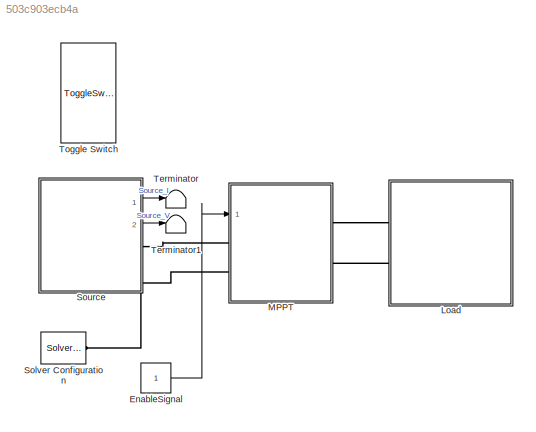
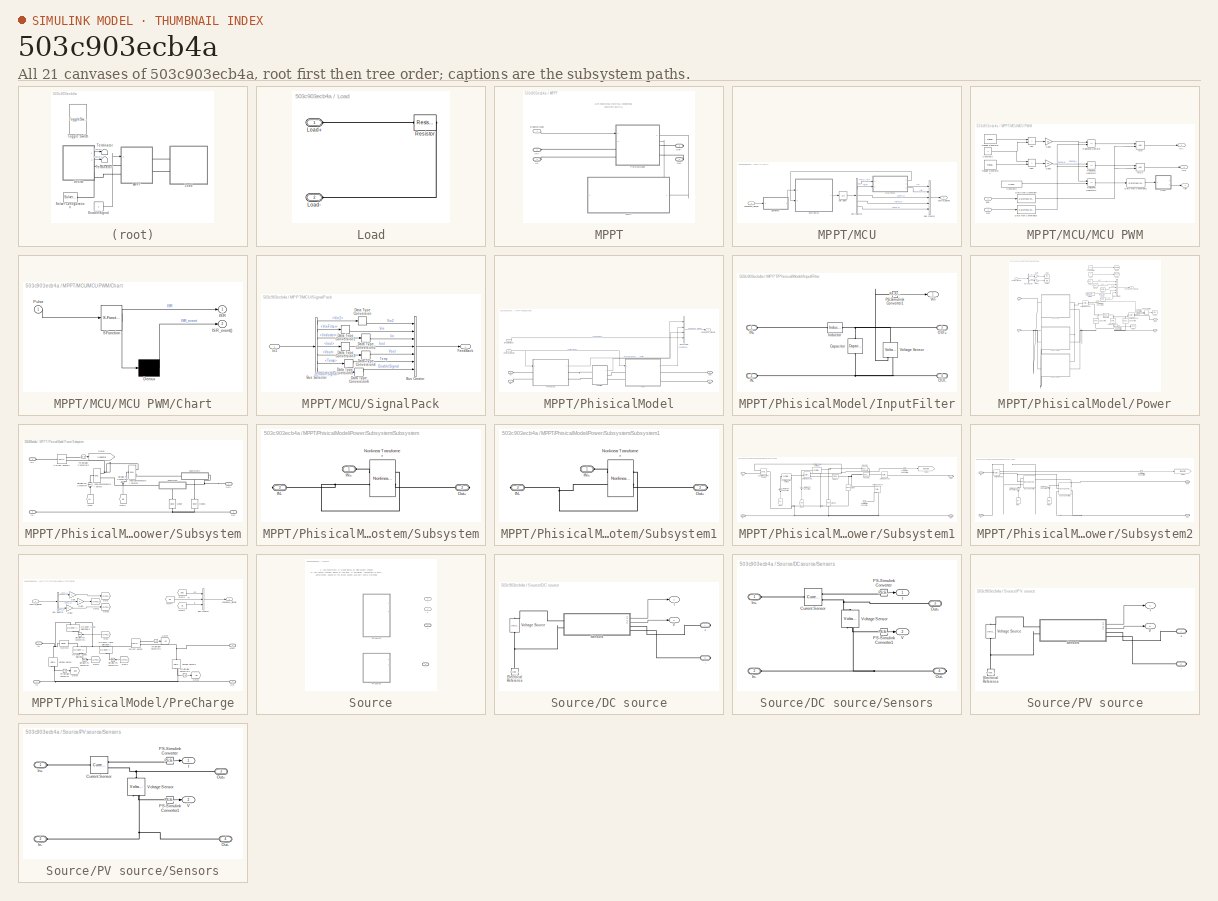
[diagram: thumbnail index - all 21 canvases of the model, root first then tree order]
MODEL slx_503c903ecb4a
KIND model
CONFIG AbsTol = auto
CONFIG EnableMultiTasking = off
CONFIG FixedStep = auto
CONFIG MaxStep = auto
CONFIG MinStep = auto
CONFIG PostLoadFcn = ModelInit
CONFIG RelTol = 1e-3
CONFIG SampleTimeConstraint = Unconstrained
CONFIG SolverName = VariableStepAuto
CONFIG StartTime = 0.0
CONFIG StopTime = 0.1
BLOCK [Constant] EnableSignal
BLOCK [SubSystem] Load
  Ports = [0, 0, 0, 0, 0, 2]
  RequestExecContextInheritance = off
BLOCK [PMIOPort] Load/Load+
  Side = Left
BLOCK [PMIOPort] Load/Load-
  Port = 2
  Side = Left
BLOCK [Reference] Load/Resistor  REF=fl_lib/Electrical/Electrical Elements/Resistor
  Ports = [0, 0, 0, 0, 0, 1, 1]
  SourceBlock = fl_lib/Electrical/Electrical Elements/Resistor
  SourceProductBaseCode = SS
  SourceType = Resistor
BLOCK [SubSystem] MPPT
  Ports = [1, 0, 0, 0, 0, 2, 2]
  RequestExecContextInheritance = off
BLOCK [Inport] MPPT/EnableSignal
BLOCK [PMIOPort] MPPT/IN+
  Side = Left
BLOCK [PMIOPort] MPPT/IN-
  Port = 2
  Side = Left
BLOCK [SubSystem] MPPT/MCU
  PortSchema = {"entries":[{"content":{"sides":[{"content":{"connectorIds":["Out1"]},"type":"ConnectorPlacement.EquallySpacedRectSide","uuid":"95aacd01-5f53-4576-9898-5de1b84e2e57"},{"content":{"connectorIds":["In1"],"side":"RIGHT"},"type":"ConnectorPlacement.EquallySpacedRectSide","uuid":"70467306-ac55-4107-9f3e-d6d472329373"},{"content":{"connectorIds":[],"side":"TOP"},"type":"ConnectorPlacement.EquallySpacedR...<+384ch>
  Ports = [1, 1]
  RequestExecContextInheritance = off
BLOCK [BusCreator] MPPT/MCU/Bus Creator
  DisplayOption = bar
  InheritFromInputs = on
  Inputs = 5
  Ports = [5, 1]
BLOCK [BusSelector] MPPT/MCU/Bus Selector
  OutputSignals = PWM_ref,Ena,OPTO_1,OPTO_2,OPTO_3
  Ports = [1, 5]
BLOCK [ModelReference] MPPT/MCU/ControlMCU
  ModelNameDialog = MpptControl.slx
  ModelReferenceVersion = 1.23
  PortSchema = {"entries":[{"content":{"sides":[{"content":{"connectorIds":["In2","In1"]},"type":"ConnectorPlacement.EquallySpacedRectSide","uuid":"62c77ea2-8a62-4ba9-937a-755ecaf63dee"},{"content":{"connectorIds":["Out1"],"side":"RIGHT"},"type":"ConnectorPlacement.EquallySpacedRectSide","uuid":"565939dd-5422-42ba-a796-bcc2d661967f"},{"content":{"connectorIds":[],"side":"TOP"},"type":"ConnectorPlacement.EquallyS...<+390ch>
  Ports = [2, 1]
  ScheduleRates = on
BLOCK [Outport] MPPT/MCU/Control_Signals
BLOCK [Inport] MPPT/MCU/Feedback_Signals
BLOCK [SubSystem] MPPT/MCU/MCU PWM
  Ports = [2, 3]
  RequestExecContextInheritance = off
BLOCK [Logic] MPPT/MCU/MCU PWM/AND
  AllPortsSameDT = off
  IconShape = distinctive
  OutDataTypeStr = boolean
  Ports = [2, 1]
BLOCK [Logic] MPPT/MCU/MCU PWM/AND1
  AllPortsSameDT = off
  IconShape = distinctive
  OutDataTypeStr = boolean
  Ports = [2, 1]
BLOCK [Sum] MPPT/MCU/MCU PWM/Add
  IconShape = rectangular
  Ports = [2, 1]
BLOCK [Sum] MPPT/MCU/MCU PWM/Add1
  IconShape = rectangular
  Ports = [2, 1]
BLOCK [SubSystem] MPPT/MCU/MCU PWM/Chart
  ErrorFcn = Stateflow.Translate.translate
  PermitHierarchicalResolution = ExplicitOnly
  Ports = [1, 2]
  RequestExecContextInheritance = off
  SFBlockType = Chart
  TreatAsAtomicUnit = on
BLOCK [Demux] MPPT/MCU/MCU PWM/Chart/ Demux 
  Outputs = 1
  Ports = [1, 1]
BLOCK [S-Function] MPPT/MCU/MCU PWM/Chart/ SFunction 
  EnableBusSupport = on
  FunctionName = sf_sfun
  PortCounts = [1 2]
  Ports = [1, 2]
  SFcnIsStateOwnerBlock = off
  SFunctionDeploymentMode = off
  Tag = Stateflow S-Function 3
BLOCK [Outport] MPPT/MCU/MCU PWM/Chart/ISR
BLOCK [Outport] MPPT/MCU/MCU PWM/Chart/ISR_event()
  Port = 2
BLOCK [Inport] MPPT/MCU/MCU PWM/Chart/Pulse
BLOCK [Constant] MPPT/MCU/MCU PWM/Constant2
BLOCK [Constant] MPPT/MCU/MCU PWM/Constant3
  Value = 0.0001
BLOCK [DataTypeConversion] MPPT/MCU/MCU PWM/Data Type Conversion
  RndMeth = Floor
  SaturateOnIntegerOverflow = off
BLOCK [DataTypeConversion] MPPT/MCU/MCU PWM/Data Type Conversion1
  RndMeth = Floor
  SaturateOnIntegerOverflow = off
BLOCK [DataTypeConversion] MPPT/MCU/MCU PWM/Data Type Conversion2
  RndMeth = Floor
  SaturateOnIntegerOverflow = off
BLOCK [Inport] MPPT/MCU/MCU PWM/Ena
  Port = 2
BLOCK [Gain] MPPT/MCU/MCU PWM/Gain1
  Gain = 0.5
BLOCK [Gain] MPPT/MCU/MCU PWM/Gain2
  Gain = 0.5
BLOCK [Outport] MPPT/MCU/MCU PWM/INA
  Port = 2
BLOCK [Outport] MPPT/MCU/MCU PWM/INB
  Port = 3
BLOCK [Outport] MPPT/MCU/MCU PWM/ISR
BLOCK [Inport] MPPT/MCU/MCU PWM/Ref
BLOCK [RelationalOperator] MPPT/MCU/MCU PWM/Relational Operator
  InputSameDT = off
  Operator = <=
  OutDataTypeStr = boolean
  Ports = [2, 1]
  RndMeth = Simplest
  ZeroCross = off
BLOCK [RelationalOperator] MPPT/MCU/MCU PWM/Relational Operator1
  InputSameDT = off
  Operator = <=
  OutDataTypeStr = boolean
  Ports = [2, 1]
  RndMeth = Simplest
  ZeroCross = off
BLOCK [RelationalOperator] MPPT/MCU/MCU PWM/Relational Operator2
  InputSameDT = off
  Operator = <=
  OutDataTypeStr = boolean
  Ports = [2, 1]
  RndMeth = Simplest
BLOCK [Reference] MPPT/MCU/MCU PWM/Triangle Generator  REF=powerlib_meascontrol/Pulse & Signal
Generators/Triangle
Generator
  Ports = [0, 1]
  SourceBlock = powerlib_meascontrol/Pulse & Signal\nGenerators/Triangle\nGenerator
  SourceProductBaseCode = PS
  SourceType = Triangle Generator
BLOCK [Reference] MPPT/MCU/MCU PWM/Triangle Generator1  REF=powerlib_meascontrol/Pulse & Signal
Generators/Triangle
Generator
  Ports = [0, 1]
  SourceBlock = powerlib_meascontrol/Pulse & Signal\nGenerators/Triangle\nGenerator
  SourceProductBaseCode = PS
  SourceType = Triangle Generator
BLOCK [SubSystem] MPPT/MCU/SignalPack
  Ports = [1, 1]
  RequestExecContextInheritance = off
BLOCK [BusCreator] MPPT/MCU/SignalPack/Bus Creator
  DisplayOption = bar
  InheritFromInputs = on
  Inputs = 7
  Ports = [7, 1]
BLOCK [BusSelector] MPPT/MCU/SignalPack/Bus Selector
  OutputSignals = PreChargeSignals.Vin2,VinFilter,PowerSignals.Iinductor,PowerSignals.Iout,PowerSignals.Vout,PowerSignals.Temp,EnableSignal
  Ports = [1, 7]
BLOCK [DataTypeConversion] MPPT/MCU/SignalPack/Data Type Conversion
  RndMeth = Floor
  SaturateOnIntegerOverflow = off
BLOCK [DataTypeConversion] MPPT/MCU/SignalPack/Data Type Conversion1
  RndMeth = Floor
  SaturateOnIntegerOverflow = off
BLOCK [DataTypeConversion] MPPT/MCU/SignalPack/Data Type Conversion2
  RndMeth = Floor
  SaturateOnIntegerOverflow = off
BLOCK [DataTypeConversion] MPPT/MCU/SignalPack/Data Type Conversion3
  RndMeth = Floor
  SaturateOnIntegerOverflow = off
BLOCK [DataTypeConversion] MPPT/MCU/SignalPack/Data Type Conversion4
  RndMeth = Floor
  SaturateOnIntegerOverflow = off
BLOCK [DataTypeConversion] MPPT/MCU/SignalPack/Data Type Conversion5
  RndMeth = Floor
  SaturateOnIntegerOverflow = off
BLOCK [DataTypeConversion] MPPT/MCU/SignalPack/Data Type Conversion6
  RndMeth = Floor
  SaturateOnIntegerOverflow = off
BLOCK [Outport] MPPT/MCU/SignalPack/FeedBack
BLOCK [Inport] MPPT/MCU/SignalPack/In1
BLOCK [UnitDelay] MPPT/MCU/Unit Delay
  HasFrameUpgradeWarning = on
  SampleTime = -1
BLOCK [PMIOPort] MPPT/Out+
  NameLocation = top
  Port = 3
  Side = Right
BLOCK [PMIOPort] MPPT/Out-
  NameLocation = top
  Port = 4
  Side = Right
BLOCK [SubSystem] MPPT/PhisicalModel
  Ports = [2, 1, 0, 0, 0, 2, 2]
  RequestExecContextInheritance = off
BLOCK [BusCreator] MPPT/PhisicalModel/Bus Creator
  DisplayOption = bar
  InheritFromInputs = on
  Inputs = 4
  Ports = [4, 1]
BLOCK [Inport] MPPT/PhisicalModel/Control_Signals
  Port = 2
BLOCK [Inport] MPPT/PhisicalModel/EnableSignal
BLOCK [Outport] MPPT/PhisicalModel/Feedback_Signals
BLOCK [PMIOPort] MPPT/PhisicalModel/IN+
  Side = Left
BLOCK [PMIOPort] MPPT/PhisicalModel/IN-
  Port = 2
  Side = Left
BLOCK [SubSystem] MPPT/PhisicalModel/InputFilter
  Ports = [0, 1, 0, 0, 0, 2, 2]
  RequestExecContextInheritance = off
BLOCK [Reference] MPPT/PhisicalModel/InputFilter/Capacitor  REF=fl_lib/Electrical/Electrical Elements/Capacitor
  NameLocation = left
  Ports = [0, 0, 0, 0, 0, 1, 1]
  SourceBlock = fl_lib/Electrical/Electrical Elements/Capacitor
  SourceProductBaseCode = SS
  SourceType = Capacitor
BLOCK [PMIOPort] MPPT/PhisicalModel/InputFilter/IN+
  Side = Left
BLOCK [PMIOPort] MPPT/PhisicalModel/InputFilter/IN-
  Port = 2
  Side = Left
BLOCK [Reference] MPPT/PhisicalModel/InputFilter/Inductor  REF=ee_lib/Passive/Inductor
  Ports = [0, 0, 0, 0, 0, 1, 1]
  SourceBlock = ee_lib/Passive/Inductor
  SourceProductBaseCode = PS
  SourceType = Inductor
BLOCK [PMIOPort] MPPT/PhisicalModel/InputFilter/OUT+
  NameLocation = top
  Port = 3
  Side = Right
BLOCK [PMIOPort] MPPT/PhisicalModel/InputFilter/OUT-
  NameLocation = top
  Port = 4
  Side = Right
BLOCK [Reference] MPPT/PhisicalModel/InputFilter/PS-Simulink Converter1  REF=nesl_utility/PS-Simulink
Converter
  Ports = [0, 1, 0, 0, 0, 1]
  SourceBlock = nesl_utility/PS-Simulink\nConverter
  SourceProductBaseCode = SS
  SourceType = PS-Simulink\nConverter
BLOCK [Outport] MPPT/PhisicalModel/InputFilter/Vin
BLOCK [Reference] MPPT/PhisicalModel/InputFilter/Voltage Sensor  REF=fl_lib/Electrical/Electrical Sensors/Voltage Sensor
  NameLocation = right
  Ports = [0, 0, 0, 0, 0, 1, 2]
  SourceBlock = fl_lib/Electrical/Electrical Sensors/Voltage Sensor
  SourceProductBaseCode = SS
  SourceType = Voltage Sensor
BLOCK [PMIOPort] MPPT/PhisicalModel/Out+
  NameLocation = top
  Port = 3
  Side = Right
BLOCK [PMIOPort] MPPT/PhisicalModel/Out-
  NameLocation = top
  Port = 4
  Side = Right
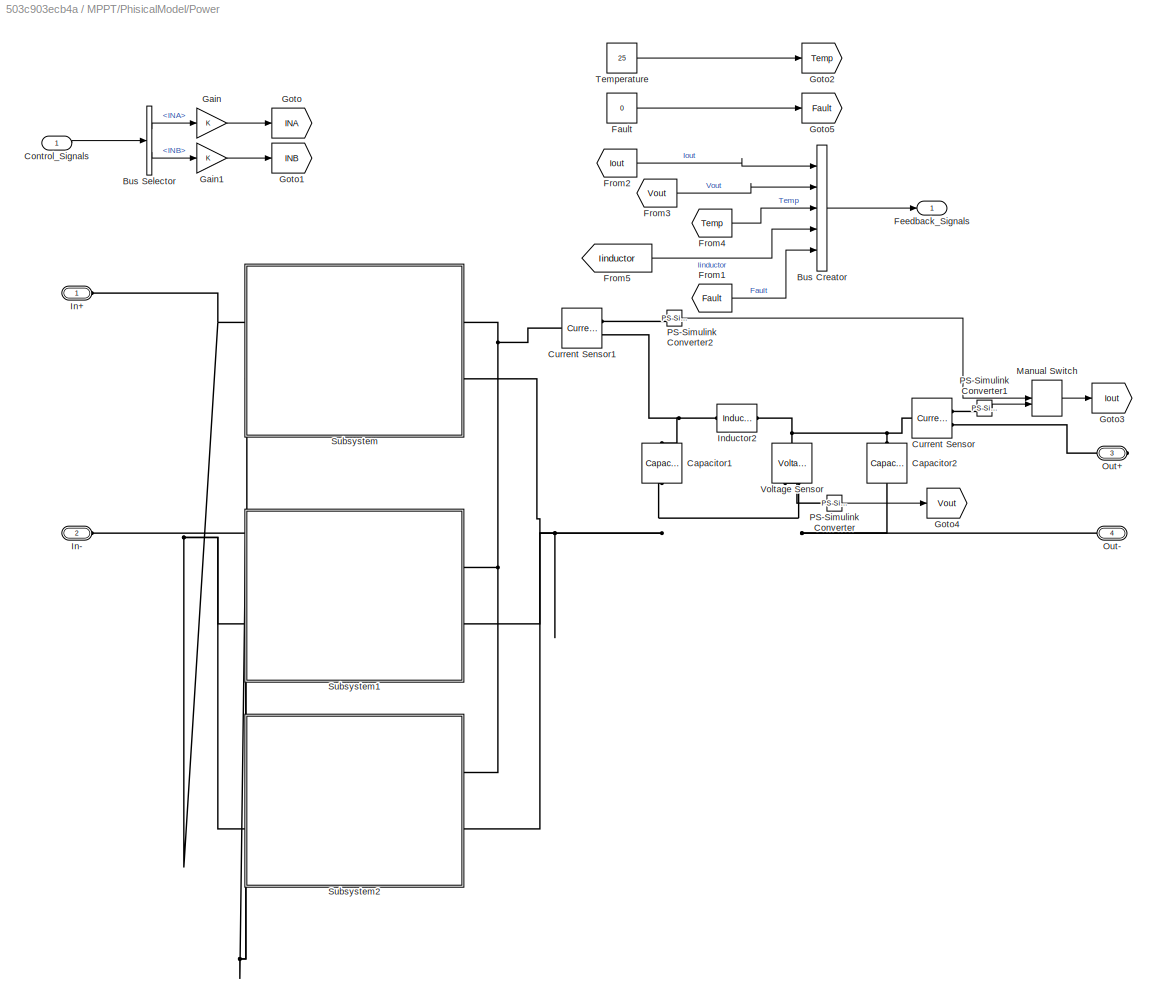
BLOCK [SubSystem] MPPT/PhisicalModel/Power
  Ports = [1, 1, 0, 0, 0, 2, 2]
  RequestExecContextInheritance = off
BLOCK [BusCreator] MPPT/PhisicalModel/Power/Bus Creator
  DisplayOption = bar
  InheritFromInputs = on
  Inputs = 5
  Ports = [5, 1]
BLOCK [BusSelector] MPPT/PhisicalModel/Power/Bus Selector
  OutputSignals = INA,INB
  Ports = [1, 2]
BLOCK [Reference] MPPT/PhisicalModel/Power/Capacitor1  REF=fl_lib/Electrical/Electrical Elements/Capacitor
  NameLocation = left
  Ports = [0, 0, 0, 0, 0, 1, 1]
  SourceBlock = fl_lib/Electrical/Electrical Elements/Capacitor
  SourceProductBaseCode = SS
  SourceType = Capacitor
BLOCK [Reference] MPPT/PhisicalModel/Power/Capacitor2  REF=fl_lib/Electrical/Electrical Elements/Capacitor
  NameLocation = left
  Ports = [0, 0, 0, 0, 0, 1, 1]
  SourceBlock = fl_lib/Electrical/Electrical Elements/Capacitor
  SourceProductBaseCode = SS
  SourceType = Capacitor
BLOCK [Inport] MPPT/PhisicalModel/Power/Control_Signals
BLOCK [Reference] MPPT/PhisicalModel/Power/Current Sensor  REF=fl_lib/Electrical/Electrical Sensors/Current Sensor
  Ports = [0, 0, 0, 0, 0, 1, 2]
  SourceBlock = fl_lib/Electrical/Electrical Sensors/Current Sensor
  SourceProductBaseCode = SS
  SourceType = Current Sensor
BLOCK [Reference] MPPT/PhisicalModel/Power/Current Sensor1  REF=fl_lib/Electrical/Electrical Sensors/Current Sensor
  Ports = [0, 0, 0, 0, 0, 1, 2]
  SourceBlock = fl_lib/Electrical/Electrical Sensors/Current Sensor
  SourceProductBaseCode = SS
  SourceType = Current Sensor
BLOCK [Constant] MPPT/PhisicalModel/Power/Fault
  OutDataTypeStr = Inherit: Inherit via back propagation
  Value = 0
BLOCK [Outport] MPPT/PhisicalModel/Power/Feedback_Signals
BLOCK [From] MPPT/PhisicalModel/Power/From1
  GotoTag = Fault
BLOCK [From] MPPT/PhisicalModel/Power/From2
  GotoTag = Iout
BLOCK [From] MPPT/PhisicalModel/Power/From3
  GotoTag = Vout
BLOCK [From] MPPT/PhisicalModel/Power/From4
  GotoTag = Temp
BLOCK [From] MPPT/PhisicalModel/Power/From5
  GotoTag = Iinductor
  TagVisibility = global
BLOCK [Gain] MPPT/PhisicalModel/Power/Gain
  OutDataTypeStr = double
BLOCK [Gain] MPPT/PhisicalModel/Power/Gain1
  OutDataTypeStr = double
BLOCK [Goto] MPPT/PhisicalModel/Power/Goto
  GotoTag = INA
  TagVisibility = global
BLOCK [Goto] MPPT/PhisicalModel/Power/Goto1
  GotoTag = INB
  TagVisibility = global
BLOCK [Goto] MPPT/PhisicalModel/Power/Goto2
  GotoTag = Temp
BLOCK [Goto] MPPT/PhisicalModel/Power/Goto3
  GotoTag = Iout
BLOCK [Goto] MPPT/PhisicalModel/Power/Goto4
  GotoTag = Vout
BLOCK [Goto] MPPT/PhisicalModel/Power/Goto5
  GotoTag = Fault
BLOCK [PMIOPort] MPPT/PhisicalModel/Power/In+
  Side = Left
BLOCK [PMIOPort] MPPT/PhisicalModel/Power/In-
  Port = 2
  Side = Left
BLOCK [Reference] MPPT/PhisicalModel/Power/Inductor2  REF=ee_lib/Passive/Inductor
  Ports = [0, 0, 0, 0, 0, 1, 1]
  SourceBlock = ee_lib/Passive/Inductor
  SourceProductBaseCode = PS
  SourceType = Inductor
BLOCK [ManualSwitch] MPPT/PhisicalModel/Power/Manual Switch
BLOCK [PMIOPort] MPPT/PhisicalModel/Power/Out+
  NameLocation = top
  Port = 3
  Side = Right
BLOCK [PMIOPort] MPPT/PhisicalModel/Power/Out-
  NameLocation = top
  Port = 4
  Side = Right
BLOCK [Reference] MPPT/PhisicalModel/Power/PS-Simulink Converter  REF=nesl_utility/PS-Simulink
Converter
  Ports = [0, 1, 0, 0, 0, 1]
  SourceBlock = nesl_utility/PS-Simulink\nConverter
  SourceProductBaseCode = SS
  SourceType = PS-Simulink\nConverter
BLOCK [Reference] MPPT/PhisicalModel/Power/PS-Simulink Converter1  REF=nesl_utility/PS-Simulink
Converter
  Ports = [0, 1, 0, 0, 0, 1]
  SourceBlock = nesl_utility/PS-Simulink\nConverter
  SourceProductBaseCode = SS
  SourceType = PS-Simulink\nConverter
BLOCK [Reference] MPPT/PhisicalModel/Power/PS-Simulink Converter2  REF=nesl_utility/PS-Simulink
Converter
  Ports = [0, 1, 0, 0, 0, 1]
  SourceBlock = nesl_utility/PS-Simulink\nConverter
  SourceProductBaseCode = SS
  SourceType = PS-Simulink\nConverter
BLOCK [SubSystem] MPPT/PhisicalModel/Power/Subsystem
  Ports = [0, 0, 0, 0, 0, 2, 2]
  RequestExecContextInheritance = off
BLOCK [Reference] MPPT/PhisicalModel/Power/Subsystem/Current Sensor1  REF=fl_lib/Electrical/Electrical Sensors/Current Sensor
  Ports = [0, 0, 0, 0, 0, 1, 2]
  SourceBlock = fl_lib/Electrical/Electrical Sensors/Current Sensor
  SourceProductBaseCode = SS
  SourceType = Current Sensor
BLOCK [Reference] MPPT/PhisicalModel/Power/Subsystem/Diode  REF=ee_lib/Semiconductors &
Converters/Diode
  NameLocation = right
  Ports = [0, 0, 0, 0, 0, 1, 1]
  SourceBlock = ee_lib/Semiconductors &\nConverters/Diode
  SourceProductBaseCode = PS
  SourceType = Diode
BLOCK [Reference] MPPT/PhisicalModel/Power/Subsystem/Diode1  REF=ee_lib/Semiconductors &
Converters/Diode
  NameLocation = right
  Ports = [0, 0, 0, 0, 0, 1, 1]
  SourceBlock = ee_lib/Semiconductors &\nConverters/Diode
  SourceProductBaseCode = PS
  SourceType = Diode
BLOCK [From] MPPT/PhisicalModel/Power/Subsystem/From
  GotoTag = INA
  NameLocation = right
  TagVisibility = global
BLOCK [From] MPPT/PhisicalModel/Power/Subsystem/From1
  GotoTag = INB
  NameLocation = right
  TagVisibility = global
BLOCK [Goto] MPPT/PhisicalModel/Power/Subsystem/Goto5
  GotoTag = Iinductor
  TagVisibility = global
BLOCK [PMIOPort] MPPT/PhisicalModel/Power/Subsystem/IN+
  Side = Left
BLOCK [PMIOPort] MPPT/PhisicalModel/Power/Subsystem/IN-
  Port = 4
  Side = Left
BLOCK [Reference] MPPT/PhisicalModel/Power/Subsystem/Ideal Semiconductor Switch  REF=ee_lib/Semiconductors &
Converters/Ideal Semiconductor
Switch
  Ports = [0, 0, 0, 0, 0, 1, 2]
  SourceBlock = ee_lib/Semiconductors &\nConverters/Ideal Semiconductor\nSwitch
  SourceProductBaseCode = PS
  SourceType = Ideal Semiconductor\nSwitch
BLOCK [Reference] MPPT/PhisicalModel/Power/Subsystem/Ideal Semiconductor Switch1  REF=ee_lib/Semiconductors &
Converters/Ideal Semiconductor
Switch
  Ports = [0, 0, 0, 0, 0, 1, 2]
  SourceBlock = ee_lib/Semiconductors &\nConverters/Ideal Semiconductor\nSwitch
  SourceProductBaseCode = PS
  SourceType = Ideal Semiconductor\nSwitch
BLOCK [PMIOPort] MPPT/PhisicalModel/Power/Subsystem/Out+
  Port = 2
  Side = Right
BLOCK [PMIOPort] MPPT/PhisicalModel/Power/Subsystem/Out-
  Port = 3
  Side = Right
BLOCK [Reference] MPPT/PhisicalModel/Power/Subsystem/PS-Simulink Converter2  REF=nesl_utility/PS-Simulink
Converter
  Ports = [0, 1, 0, 0, 0, 1]
  SourceBlock = nesl_utility/PS-Simulink\nConverter
  SourceProductBaseCode = SS
  SourceType = PS-Simulink\nConverter
BLOCK [Reference] MPPT/PhisicalModel/Power/Subsystem/Simulink-PS Converter  REF=nesl_utility/Simulink-PS
Converter
  NameLocation = right
  Ports = [1, 0, 0, 0, 0, 0, 1]
  SourceBlock = nesl_utility/Simulink-PS\nConverter
  SourceProductBaseCode = SS
  SourceType = Simulink-PS\nConverter
BLOCK [Reference] MPPT/PhisicalModel/Power/Subsystem/Simulink-PS Converter1  REF=nesl_utility/Simulink-PS
Converter
  NameLocation = right
  Ports = [1, 0, 0, 0, 0, 0, 1]
  SourceBlock = nesl_utility/Simulink-PS\nConverter
  SourceProductBaseCode = SS
  SourceType = Simulink-PS\nConverter
BLOCK [SubSystem] MPPT/PhisicalModel/Power/Subsystem/Subsystem
  PortSchema = {"entries":[{"content":{"sides":[{"content":{"connectorIds":["LConn1"]},"type":"ConnectorPlacement.EquallySpacedRectSide","uuid":"64a96416-4874-4b36-bf76-485376ce2e10"},{"content":{"connectorIds":["RConn1"],"side":"RIGHT"},"type":"ConnectorPlacement.EquallySpacedRectSide","uuid":"55068a5e-3832-4911-967c-be8dd15c9dce"},{"content":{"connectorIds":[],"side":"TOP"},"type":"ConnectorPlacement.EquallySp...<+541ch>
  Ports = [0, 0, 0, 0, 0, 1, 2]
  RequestExecContextInheritance = off
BLOCK [PMIOPort] MPPT/PhisicalModel/Power/Subsystem/Subsystem/IN+
  Side = Left
BLOCK [PMIOPort] MPPT/PhisicalModel/Power/Subsystem/Subsystem/IN-
  Port = 3
  Side = Right
BLOCK [Reference] MPPT/PhisicalModel/Power/Subsystem/Subsystem/Nonlinear Transformer  REF=ee_lib/Passive/Transformers/Nonlinear
Transformer
  Ports = [0, 0, 0, 0, 0, 2, 2]
  SourceBlock = ee_lib/Passive/Transformers/Nonlinear\nTransformer
  SourceProductBaseCode = PS
  SourceType = Nonlinear\nTransformer
BLOCK [PMIOPort] MPPT/PhisicalModel/Power/Subsystem/Subsystem/Out+
  Port = 2
  Side = Right
BLOCK [SubSystem] MPPT/PhisicalModel/Power/Subsystem/Subsystem1
  PortSchema = {"entries":[{"content":{"sides":[{"content":{"connectorIds":["LConn1"]},"type":"ConnectorPlacement.EquallySpacedRectSide","uuid":"64a96416-4874-4b36-bf76-485376ce2e10"},{"content":{"connectorIds":["RConn1"],"side":"RIGHT"},"type":"ConnectorPlacement.EquallySpacedRectSide","uuid":"55068a5e-3832-4911-967c-be8dd15c9dce"},{"content":{"connectorIds":[],"side":"TOP"},"type":"ConnectorPlacement.EquallySp...<+541ch>
  Ports = [0, 0, 0, 0, 0, 1, 2]
  RequestExecContextInheritance = off
BLOCK [PMIOPort] MPPT/PhisicalModel/Power/Subsystem/Subsystem1/IN+
  Side = Left
BLOCK [PMIOPort] MPPT/PhisicalModel/Power/Subsystem/Subsystem1/IN-
  Port = 3
  Side = Right
BLOCK [Reference] MPPT/PhisicalModel/Power/Subsystem/Subsystem1/Nonlinear Transformer  REF=ee_lib/Passive/Transformers/Nonlinear
Transformer
  Ports = [0, 0, 0, 0, 0, 2, 2]
  SourceBlock = ee_lib/Passive/Transformers/Nonlinear\nTransformer
  SourceProductBaseCode = PS
  SourceType = Nonlinear\nTransformer
BLOCK [PMIOPort] MPPT/PhisicalModel/Power/Subsystem/Subsystem1/Out+
  Port = 2
  Side = Right
BLOCK [SubSystem] MPPT/PhisicalModel/Power/Subsystem1
  Commented = on
  Ports = [0, 0, 0, 0, 0, 2, 2]
  RequestExecContextInheritance = off
BLOCK [PMIOPort] MPPT/PhisicalModel/Power/Subsystem1/ Out+
  Port = 3
  Side = Right
BLOCK [Reference] MPPT/PhisicalModel/Power/Subsystem1/Controlled Current Source  REF=fl_lib/Electrical/Electrical Sources/Controlled Current
Source
  Ports = [0, 0, 0, 0, 0, 1, 2]
  SourceBlock = fl_lib/Electrical/Electrical Sources/Controlled Current\nSource
  SourceProductBaseCode = SS
  SourceType = Controlled Current\nSource
BLOCK [Reference] MPPT/PhisicalModel/Power/Subsystem1/Controlled PWM Voltage  REF=ee_lib/Integrated Circuits/Controlled PWM
Voltage
  Ports = [0, 0, 0, 0, 0, 1, 2]
  SourceBlock = ee_lib/Integrated Circuits/Controlled PWM\nVoltage
  SourceProductBaseCode = PS
  SourceType = Controlled PWM\nVoltage
BLOCK [Reference] MPPT/PhisicalModel/Power/Subsystem1/Controlled PWM Voltage1  REF=ee_lib/Integrated Circuits/Controlled PWM
Voltage
  NameLocation = top
  Ports = [0, 0, 0, 0, 0, 1, 2]
  SourceBlock = ee_lib/Integrated Circuits/Controlled PWM\nVoltage
  SourceProductBaseCode = PS
  SourceType = Controlled PWM\nVoltage
BLOCK [Reference] MPPT/PhisicalModel/Power/Subsystem1/Current Sensor1  REF=fl_lib/Electrical/Electrical Sensors/Current Sensor
  Ports = [0, 0, 0, 0, 0, 1, 2]
  SourceBlock = fl_lib/Electrical/Electrical Sensors/Current Sensor
  SourceProductBaseCode = SS
  SourceType = Current Sensor
BLOCK [Reference] MPPT/PhisicalModel/Power/Subsystem1/Current Sensor2  REF=fl_lib/Electrical/Electrical Sensors/Current Sensor
  Ports = [0, 0, 0, 0, 0, 1, 2]
  SourceBlock = fl_lib/Electrical/Electrical Sensors/Current Sensor
  SourceProductBaseCode = SS
  SourceType = Current Sensor
BLOCK [Reference] MPPT/PhisicalModel/Power/Subsystem1/Diode  REF=ee_lib/Semiconductors &
Converters/Diode
  NameLocation = right
  Ports = [0, 0, 0, 0, 0, 1, 1]
  SourceBlock = ee_lib/Semiconductors &\nConverters/Diode
  SourceProductBaseCode = PS
  SourceType = Diode
BLOCK [Reference] MPPT/PhisicalModel/Power/Subsystem1/Diode1  REF=ee_lib/Semiconductors &
Converters/Diode
  NameLocation = right
  Ports = [0, 0, 0, 0, 0, 1, 1]
  SourceBlock = ee_lib/Semiconductors &\nConverters/Diode
  SourceProductBaseCode = PS
  SourceType = Diode
BLOCK [Reference] MPPT/PhisicalModel/Power/Subsystem1/Diode2  REF=ee_lib/Semiconductors &
Converters/Diode
  Ports = [0, 0, 0, 0, 0, 1, 1]
  SourceBlock = ee_lib/Semiconductors &\nConverters/Diode
  SourceProductBaseCode = PS
  SourceType = Diode
BLOCK [From] MPPT/PhisicalModel/Power/Subsystem1/From
  GotoTag = INA
  NameLocation = right
  TagVisibility = global
BLOCK [From] MPPT/PhisicalModel/Power/Subsystem1/From1
  GotoTag = INB
  NameLocation = right
  TagVisibility = global
BLOCK [Goto] MPPT/PhisicalModel/Power/Subsystem1/Goto5
  GotoTag = Iinductor
  TagVisibility = global
BLOCK [PMIOPort] MPPT/PhisicalModel/Power/Subsystem1/IN+
  Port = 2
  Side = Left
BLOCK [PMIOPort] MPPT/PhisicalModel/Power/Subsystem1/IN-
  Side = Left
BLOCK [Reference] MPPT/PhisicalModel/Power/Subsystem1/Inductor  REF=ee_lib/Passive/Inductor
  Ports = [0, 0, 0, 0, 0, 1, 1]
  SourceBlock = ee_lib/Passive/Inductor
  SourceProductBaseCode = PS
  SourceType = Inductor
BLOCK [Reference] MPPT/PhisicalModel/Power/Subsystem1/Inductor1  REF=ee_lib/Passive/Inductor
  Ports = [0, 0, 0, 0, 0, 1, 1]
  SourceBlock = ee_lib/Passive/Inductor
  SourceProductBaseCode = PS
  SourceType = Inductor
BLOCK [PMIOPort] MPPT/PhisicalModel/Power/Subsystem1/Out-
  Port = 4
  Side = Right
BLOCK [Reference] MPPT/PhisicalModel/Power/Subsystem1/PS-Simulink Converter  REF=nesl_utility/PS-Simulink
Converter
  NameLocation = top
  Ports = [0, 1, 0, 0, 0, 1]
  SourceBlock = nesl_utility/PS-Simulink\nConverter
  SourceProductBaseCode = SS
  SourceType = PS-Simulink\nConverter
BLOCK [Reference] MPPT/PhisicalModel/Power/Subsystem1/PS-Simulink Converter2  REF=nesl_utility/PS-Simulink
Converter
  Ports = [0, 1, 0, 0, 0, 1]
  SourceBlock = nesl_utility/PS-Simulink\nConverter
  SourceProductBaseCode = SS
  SourceType = PS-Simulink\nConverter
BLOCK [Reference] MPPT/PhisicalModel/Power/Subsystem1/Simulink-PS Converter  REF=nesl_utility/Simulink-PS
Converter
  NameLocation = right
  Ports = [1, 0, 0, 0, 0, 0, 1]
  SourceBlock = nesl_utility/Simulink-PS\nConverter
  SourceProductBaseCode = SS
  SourceType = Simulink-PS\nConverter
BLOCK [Reference] MPPT/PhisicalModel/Power/Subsystem1/Simulink-PS Converter1  REF=nesl_utility/Simulink-PS
Converter
  NameLocation = right
  Ports = [1, 0, 0, 0, 0, 0, 1]
  SourceBlock = nesl_utility/Simulink-PS\nConverter
  SourceProductBaseCode = SS
  SourceType = Simulink-PS\nConverter
BLOCK [Reference] MPPT/PhisicalModel/Power/Subsystem1/Voltage Sensor  REF=fl_lib/Electrical/Electrical Sensors/Voltage Sensor
  NameLocation = right
  Ports = [0, 0, 0, 0, 0, 1, 2]
  SourceBlock = fl_lib/Electrical/Electrical Sensors/Voltage Sensor
  SourceProductBaseCode = SS
  SourceType = Voltage Sensor
BLOCK [SubSystem] MPPT/PhisicalModel/Power/Subsystem2
  Commented = on
  Ports = [0, 0, 0, 0, 0, 2, 2]
  RequestExecContextInheritance = off
BLOCK [PMIOPort] MPPT/PhisicalModel/Power/Subsystem2/ Out+
  Port = 3
  Side = Right
BLOCK [Reference] MPPT/PhisicalModel/Power/Subsystem2/Buck Converter  REF=ee_lib/Semiconductors &
Converters/Converters/Buck Converter
  Ports = [0, 0, 0, 0, 0, 3, 2]
  SourceBlock = ee_lib/Semiconductors &\nConverters/Converters/Buck Converter
  SourceProductBaseCode = PS
  SourceType = Buck Converter
BLOCK [Reference] MPPT/PhisicalModel/Power/Subsystem2/Buck Converter1  REF=ee_lib/Semiconductors &
Converters/Converters/Buck Converter
  Ports = [0, 0, 0, 0, 0, 3, 2]
  SourceBlock = ee_lib/Semiconductors &\nConverters/Converters/Buck Converter
  SourceProductBaseCode = PS
  SourceType = Buck Converter
BLOCK [Reference] MPPT/PhisicalModel/Power/Subsystem2/Current Sensor1  REF=fl_lib/Electrical/Electrical Sensors/Current Sensor
  Ports = [0, 0, 0, 0, 0, 1, 2]
  SourceBlock = fl_lib/Electrical/Electrical Sensors/Current Sensor
  SourceProductBaseCode = SS
  SourceType = Current Sensor
BLOCK [From] MPPT/PhisicalModel/Power/Subsystem2/From
  GotoTag = INA
  NameLocation = right
  TagVisibility = global
BLOCK [From] MPPT/PhisicalModel/Power/Subsystem2/From1
  GotoTag = INB
  NameLocation = right
  TagVisibility = global
BLOCK [Goto] MPPT/PhisicalModel/Power/Subsystem2/Goto5
  GotoTag = Iinductor
  TagVisibility = global
BLOCK [PMIOPort] MPPT/PhisicalModel/Power/Subsystem2/IN+
  Port = 2
  Side = Left
BLOCK [PMIOPort] MPPT/PhisicalModel/Power/Subsystem2/IN-
  Side = Left
BLOCK [PMIOPort] MPPT/PhisicalModel/Power/Subsystem2/Out-
  Port = 4
  Side = Right
BLOCK [Reference] MPPT/PhisicalModel/Power/Subsystem2/PS-Simulink Converter2  REF=nesl_utility/PS-Simulink
Converter
  Ports = [0, 1, 0, 0, 0, 1]
  SourceBlock = nesl_utility/PS-Simulink\nConverter
  SourceProductBaseCode = SS
  SourceType = PS-Simulink\nConverter
BLOCK [Reference] MPPT/PhisicalModel/Power/Subsystem2/Simulink-PS Converter  REF=nesl_utility/Simulink-PS
Converter
  NameLocation = right
  Ports = [1, 0, 0, 0, 0, 0, 1]
  SourceBlock = nesl_utility/Simulink-PS\nConverter
  SourceProductBaseCode = SS
  SourceType = Simulink-PS\nConverter
BLOCK [Reference] MPPT/PhisicalModel/Power/Subsystem2/Simulink-PS Converter1  REF=nesl_utility/Simulink-PS
Converter
  NameLocation = right
  Ports = [1, 0, 0, 0, 0, 0, 1]
  SourceBlock = nesl_utility/Simulink-PS\nConverter
  SourceProductBaseCode = SS
  SourceType = Simulink-PS\nConverter
BLOCK [Constant] MPPT/PhisicalModel/Power/Temperature
  OutDataTypeStr = Inherit: Inherit via back propagation
  Value = 25
BLOCK [Reference] MPPT/PhisicalModel/Power/Voltage Sensor  REF=fl_lib/Electrical/Electrical Sensors/Voltage Sensor
  NameLocation = right
  Ports = [0, 0, 0, 0, 0, 1, 2]
  SourceBlock = fl_lib/Electrical/Electrical Sensors/Voltage Sensor
  SourceProductBaseCode = SS
  SourceType = Voltage Sensor
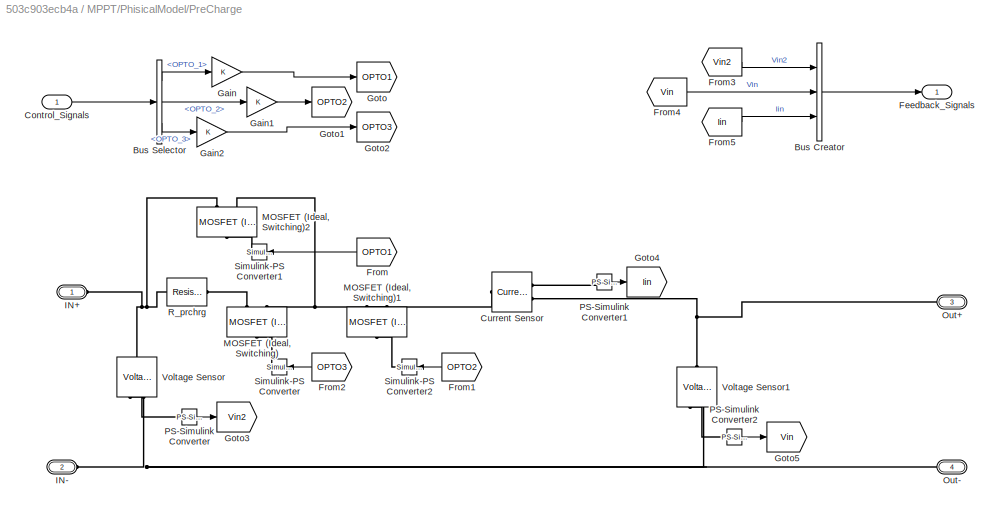
BLOCK [SubSystem] MPPT/PhisicalModel/PreCharge
  Ports = [1, 1, 0, 0, 0, 2, 2]
  RequestExecContextInheritance = off
BLOCK [BusCreator] MPPT/PhisicalModel/PreCharge/Bus Creator
  DisplayOption = bar
  InheritFromInputs = on
  Inputs = 3
  Ports = [3, 1]
BLOCK [BusSelector] MPPT/PhisicalModel/PreCharge/Bus Selector
  OutputSignals = OPTO_1,OPTO_2,OPTO_3
  Ports = [1, 3]
BLOCK [Inport] MPPT/PhisicalModel/PreCharge/Control_Signals
BLOCK [Reference] MPPT/PhisicalModel/PreCharge/Current Sensor  REF=fl_lib/Electrical/Electrical Sensors/Current Sensor
  Ports = [0, 0, 0, 0, 0, 1, 2]
  SourceBlock = fl_lib/Electrical/Electrical Sensors/Current Sensor
  SourceProductBaseCode = SS
  SourceType = Current Sensor
BLOCK [Outport] MPPT/PhisicalModel/PreCharge/Feedback_Signals
BLOCK [From] MPPT/PhisicalModel/PreCharge/From
  GotoTag = OPTO1
  NameLocation = top
BLOCK [From] MPPT/PhisicalModel/PreCharge/From1
  GotoTag = OPTO2
  NameLocation = top
BLOCK [From] MPPT/PhisicalModel/PreCharge/From2
  GotoTag = OPTO3
  NameLocation = top
BLOCK [From] MPPT/PhisicalModel/PreCharge/From3
  GotoTag = Vin2
BLOCK [From] MPPT/PhisicalModel/PreCharge/From4
  GotoTag = Vin
BLOCK [From] MPPT/PhisicalModel/PreCharge/From5
  GotoTag = Iin
BLOCK [Gain] MPPT/PhisicalModel/PreCharge/Gain
  OutDataTypeStr = double
BLOCK [Gain] MPPT/PhisicalModel/PreCharge/Gain1
  OutDataTypeStr = double
BLOCK [Gain] MPPT/PhisicalModel/PreCharge/Gain2
  OutDataTypeStr = double
BLOCK [Goto] MPPT/PhisicalModel/PreCharge/Goto
  GotoTag = OPTO1
BLOCK [Goto] MPPT/PhisicalModel/PreCharge/Goto1
  GotoTag = OPTO2
BLOCK [Goto] MPPT/PhisicalModel/PreCharge/Goto2
  GotoTag = OPTO3
BLOCK [Goto] MPPT/PhisicalModel/PreCharge/Goto3
  GotoTag = Vin2
BLOCK [Goto] MPPT/PhisicalModel/PreCharge/Goto4
  GotoTag = Iin
BLOCK [Goto] MPPT/PhisicalModel/PreCharge/Goto5
  GotoTag = Vin
BLOCK [PMIOPort] MPPT/PhisicalModel/PreCharge/IN+
  Side = Left
BLOCK [PMIOPort] MPPT/PhisicalModel/PreCharge/IN-
  Port = 2
  Side = Left
BLOCK [Reference] MPPT/PhisicalModel/PreCharge/MOSFET (Ideal, Switching)  REF=ee_lib/Semiconductors &
Converters/MOSFET
(Ideal,
Switching)
  NameLocation = right
  Ports = [0, 0, 0, 0, 0, 1, 2]
  SourceBlock = ee_lib/Semiconductors &\nConverters/MOSFET\n(Ideal,\nSwitching)
  SourceProductBaseCode = PS
  SourceType = MOSFET\n(Ideal,\nSwitching)
BLOCK [Reference] MPPT/PhisicalModel/PreCharge/MOSFET (Ideal, Switching)1  REF=ee_lib/Semiconductors &
Converters/MOSFET
(Ideal,
Switching)
  NameLocation = right
  Ports = [0, 0, 0, 0, 0, 1, 2]
  SourceBlock = ee_lib/Semiconductors &\nConverters/MOSFET\n(Ideal,\nSwitching)
  SourceProductBaseCode = PS
  SourceType = MOSFET\n(Ideal,\nSwitching)
BLOCK [Reference] MPPT/PhisicalModel/PreCharge/MOSFET (Ideal, Switching)2  REF=ee_lib/Semiconductors &
Converters/MOSFET
(Ideal,
Switching)
  NameLocation = right
  Ports = [0, 0, 0, 0, 0, 1, 2]
  SourceBlock = ee_lib/Semiconductors &\nConverters/MOSFET\n(Ideal,\nSwitching)
  SourceProductBaseCode = PS
  SourceType = MOSFET\n(Ideal,\nSwitching)
BLOCK [PMIOPort] MPPT/PhisicalModel/PreCharge/Out+
  NameLocation = top
  Port = 3
  Side = Right
BLOCK [PMIOPort] MPPT/PhisicalModel/PreCharge/Out-
  NameLocation = top
  Port = 4
  Side = Right
BLOCK [Reference] MPPT/PhisicalModel/PreCharge/PS-Simulink Converter  REF=nesl_utility/PS-Simulink
Converter
  Ports = [0, 1, 0, 0, 0, 1]
  SourceBlock = nesl_utility/PS-Simulink\nConverter
  SourceProductBaseCode = SS
  SourceType = PS-Simulink\nConverter
BLOCK [Reference] MPPT/PhisicalModel/PreCharge/PS-Simulink Converter1  REF=nesl_utility/PS-Simulink
Converter
  Ports = [0, 1, 0, 0, 0, 1]
  SourceBlock = nesl_utility/PS-Simulink\nConverter
  SourceProductBaseCode = SS
  SourceType = PS-Simulink\nConverter
BLOCK [Reference] MPPT/PhisicalModel/PreCharge/PS-Simulink Converter2  REF=nesl_utility/PS-Simulink
Converter
  Ports = [0, 1, 0, 0, 0, 1]
  SourceBlock = nesl_utility/PS-Simulink\nConverter
  SourceProductBaseCode = SS
  SourceType = PS-Simulink\nConverter
BLOCK [Reference] MPPT/PhisicalModel/PreCharge/R_prchrg  REF=fl_lib/Electrical/Electrical Elements/Resistor
  Ports = [0, 0, 0, 0, 0, 1, 1]
  SourceBlock = fl_lib/Electrical/Electrical Elements/Resistor
  SourceProductBaseCode = SS
  SourceType = Resistor
BLOCK [Reference] MPPT/PhisicalModel/PreCharge/Simulink-PS Converter  REF=nesl_utility/Simulink-PS
Converter
  NameLocation = top
  Ports = [1, 0, 0, 0, 0, 0, 1]
  SourceBlock = nesl_utility/Simulink-PS\nConverter
  SourceProductBaseCode = SS
  SourceType = Simulink-PS\nConverter
BLOCK [Reference] MPPT/PhisicalModel/PreCharge/Simulink-PS Converter1  REF=nesl_utility/Simulink-PS
Converter
  NameLocation = top
  Ports = [1, 0, 0, 0, 0, 0, 1]
  SourceBlock = nesl_utility/Simulink-PS\nConverter
  SourceProductBaseCode = SS
  SourceType = Simulink-PS\nConverter
BLOCK [Reference] MPPT/PhisicalModel/PreCharge/Simulink-PS Converter2  REF=nesl_utility/Simulink-PS
Converter
  NameLocation = top
  Ports = [1, 0, 0, 0, 0, 0, 1]
  SourceBlock = nesl_utility/Simulink-PS\nConverter
  SourceProductBaseCode = SS
  SourceType = Simulink-PS\nConverter
BLOCK [Reference] MPPT/PhisicalModel/PreCharge/Voltage Sensor  REF=fl_lib/Electrical/Electrical Sensors/Voltage Sensor
  NameLocation = right
  Ports = [0, 0, 0, 0, 0, 1, 2]
  SourceBlock = fl_lib/Electrical/Electrical Sensors/Voltage Sensor
  SourceProductBaseCode = SS
  SourceType = Voltage Sensor
BLOCK [Reference] MPPT/PhisicalModel/PreCharge/Voltage Sensor1  REF=fl_lib/Electrical/Electrical Sensors/Voltage Sensor
  NameLocation = right
  Ports = [0, 0, 0, 0, 0, 1, 2]
  SourceBlock = fl_lib/Electrical/Electrical Sensors/Voltage Sensor
  SourceProductBaseCode = SS
  SourceType = Voltage Sensor
BLOCK [Reference] Solver Configuration  REF=nesl_utility/Solver
Configuration
  Ports = [0, 0, 0, 0, 0, 0, 1]
  SourceBlock = nesl_utility/Solver\nConfiguration
  SourceProductBaseCode = SS
  SourceType = Solver\nConfiguration
BLOCK [SubSystem] Source
  AncestorBlock = slexMaskingVariants_libraryblock/VariantSubsystem2
  LabelModeActiveChoice = DCvariant
  Ports = [0, 2, 0, 0, 0, 0, 2]
  RequestExecContextInheritance = off
  Variant = on
  VariantControlMode = label
BLOCK [PMIOPort] Source/+
  NameLocation = top
  Side = Right
BLOCK [PMIOPort] Source/-
  NameLocation = top
  Port = 2
  Side = Right
BLOCK [SubSystem] Source/DC source
  Ports = [0, 2, 0, 0, 0, 0, 2]
  RequestExecContextInheritance = off
  VariantControl = DCvariant
BLOCK [PMIOPort] Source/DC source/+
  NameLocation = top
  Side = Right
BLOCK [PMIOPort] Source/DC source/-
  NameLocation = top
  Port = 2
  Side = Right
BLOCK [Reference] Source/DC source/Electrical Reference  REF=fl_lib/Electrical/Electrical Elements/Electrical Reference
  NameLocation = right
  Ports = [0, 0, 0, 0, 0, 1]
  SourceBlock = fl_lib/Electrical/Electrical Elements/Electrical Reference
  SourceProductBaseCode = SS
  SourceType = Electrical Reference
BLOCK [Outport] Source/DC source/I
  VectorParamsAs1DForOutWhenUnconnected = off
BLOCK [SubSystem] Source/DC source/Sensors
  Ports = [0, 2, 0, 0, 0, 2, 2]
  RequestExecContextInheritance = off
BLOCK [Reference] Source/DC source/Sensors/Current Sensor  REF=fl_lib/Electrical/Electrical Sensors/Current Sensor
  Ports = [0, 0, 0, 0, 0, 1, 2]
  SourceBlock = fl_lib/Electrical/Electrical Sensors/Current Sensor
  SourceProductBaseCode = SS
  SourceType = Current Sensor
BLOCK [Outport] Source/DC source/Sensors/I
BLOCK [PMIOPort] Source/DC source/Sensors/In+
  Side = Left
BLOCK [PMIOPort] Source/DC source/Sensors/In-
  NameLocation = top
  Port = 2
  Side = Left
BLOCK [PMIOPort] Source/DC source/Sensors/Out+
  NameLocation = top
  Port = 3
  Side = Right
BLOCK [PMIOPort] Source/DC source/Sensors/Out-
  Port = 4
  Side = Right
BLOCK [Reference] Source/DC source/Sensors/PS-Simulink Converter  REF=nesl_utility/PS-Simulink
Converter
  Ports = [0, 1, 0, 0, 0, 1]
  SourceBlock = nesl_utility/PS-Simulink\nConverter
  SourceProductBaseCode = SS
  SourceType = PS-Simulink\nConverter
BLOCK [Reference] Source/DC source/Sensors/PS-Simulink Converter1  REF=nesl_utility/PS-Simulink
Converter
  Ports = [0, 1, 0, 0, 0, 1]
  SourceBlock = nesl_utility/PS-Simulink\nConverter
  SourceProductBaseCode = SS
  SourceType = PS-Simulink\nConverter
BLOCK [Outport] Source/DC source/Sensors/V
  Port = 2
BLOCK [Reference] Source/DC source/Sensors/Voltage Sensor  REF=fl_lib/Electrical/Electrical Sensors/Voltage Sensor
  NameLocation = right
  Ports = [0, 0, 0, 0, 0, 1, 2]
  SourceBlock = fl_lib/Electrical/Electrical Sensors/Voltage Sensor
  SourceProductBaseCode = SS
  SourceType = Voltage Sensor
BLOCK [Outport] Source/DC source/V
  Port = 2
  VectorParamsAs1DForOutWhenUnconnected = off
BLOCK [Reference] Source/DC source/Voltage Source  REF=ee_lib/Sources/Voltage Source
  NameLocation = right
  Ports = [0, 0, 0, 0, 0, 1, 1]
  SourceBlock = ee_lib/Sources/Voltage Source
  SourceProductBaseCode = PS
  SourceType = Voltage Source
BLOCK [Outport] Source/I
  VectorParamsAs1DForOutWhenUnconnected = off
BLOCK [SubSystem] Source/PV source
  Ports = [0, 2, 0, 0, 0, 0, 2]
  RequestExecContextInheritance = off
  VariantControl = PVvariant
BLOCK [PMIOPort] Source/PV source/+
  NameLocation = top
  Side = Right
BLOCK [PMIOPort] Source/PV source/-
  NameLocation = top
  Port = 2
  Side = Right
BLOCK [Reference] Source/PV source/Electrical Reference  REF=fl_lib/Electrical/Electrical Elements/Electrical Reference
  NameLocation = right
  Ports = [0, 0, 0, 0, 0, 1]
  SourceBlock = fl_lib/Electrical/Electrical Elements/Electrical Reference
  SourceProductBaseCode = SS
  SourceType = Electrical Reference
BLOCK [Outport] Source/PV source/I
  VectorParamsAs1DForOutWhenUnconnected = off
BLOCK [SubSystem] Source/PV source/Sensors
  Ports = [0, 2, 0, 0, 0, 2, 2]
  RequestExecContextInheritance = off
BLOCK [Reference] Source/PV source/Sensors/Current Sensor  REF=fl_lib/Electrical/Electrical Sensors/Current Sensor
  Ports = [0, 0, 0, 0, 0, 1, 2]
  SourceBlock = fl_lib/Electrical/Electrical Sensors/Current Sensor
  SourceProductBaseCode = SS
  SourceType = Current Sensor
BLOCK [Outport] Source/PV source/Sensors/I
BLOCK [PMIOPort] Source/PV source/Sensors/In+
  Side = Left
BLOCK [PMIOPort] Source/PV source/Sensors/In-
  NameLocation = top
  Port = 2
  Side = Left
BLOCK [PMIOPort] Source/PV source/Sensors/Out+
  NameLocation = top
  Port = 3
  Side = Right
BLOCK [PMIOPort] Source/PV source/Sensors/Out-
  Port = 4
  Side = Right
BLOCK [Reference] Source/PV source/Sensors/PS-Simulink Converter  REF=nesl_utility/PS-Simulink
Converter
  Ports = [0, 1, 0, 0, 0, 1]
  SourceBlock = nesl_utility/PS-Simulink\nConverter
  SourceProductBaseCode = SS
  SourceType = PS-Simulink\nConverter
BLOCK [Reference] Source/PV source/Sensors/PS-Simulink Converter1  REF=nesl_utility/PS-Simulink
Converter
  Ports = [0, 1, 0, 0, 0, 1]
  SourceBlock = nesl_utility/PS-Simulink\nConverter
  SourceProductBaseCode = SS
  SourceType = PS-Simulink\nConverter
BLOCK [Outport] Source/PV source/Sensors/V
  Port = 2
BLOCK [Reference] Source/PV source/Sensors/Voltage Sensor  REF=fl_lib/Electrical/Electrical Sensors/Voltage Sensor
  NameLocation = right
  Ports = [0, 0, 0, 0, 0, 1, 2]
  SourceBlock = fl_lib/Electrical/Electrical Sensors/Voltage Sensor
  SourceProductBaseCode = SS
  SourceType = Voltage Sensor
BLOCK [Outport] Source/PV source/V
  Port = 2
  VectorParamsAs1DForOutWhenUnconnected = off
BLOCK [Reference] Source/PV source/Voltage Source  REF=ee_lib/Sources/Voltage Source
  NameLocation = right
  Ports = [0, 0, 0, 0, 0, 1, 1]
  SourceBlock = ee_lib/Sources/Voltage Source
  SourceProductBaseCode = PS
  SourceType = Voltage Source
BLOCK [Outport] Source/V
  Port = 2
  VectorParamsAs1DForOutWhenUnconnected = off
BLOCK [Terminator] Terminator
BLOCK [Terminator] Terminator1
BLOCK [ToggleSwitchBlock] Toggle Switch
ANNOTATION MPPT: Для просмотра структуры конвертера нажмите ЗДЕСЬ
ANNOTATION Source: 1) Add Subsystem or Model blocks as valid variant choices. 2) You cannot connect blocks at this level. At simulation, connectivity is automatically determined, based on the active variant and port name matching.
LINE EnableSignal:1 -> MPPT:1
LINE MPPT/EnableSignal:1 -> MPPT/PhisicalModel:1
LINE MPPT/MCU/Bus Creator:1 -> MPPT/MCU/Control_Signals:1
LINE MPPT/MCU/Bus Selector:1 -> MPPT/MCU/MCU PWM:1
LINE MPPT/MCU/Bus Selector:2 -> MPPT/MCU/MCU PWM:2
LINE MPPT/MCU/Bus Selector:3 -> MPPT/MCU/Bus Creator:3
LINE MPPT/MCU/Bus Selector:4 -> MPPT/MCU/Bus Creator:4
LINE MPPT/MCU/Bus Selector:5 -> MPPT/MCU/Bus Creator:5
LINE MPPT/MCU/ControlMCU:1 -> MPPT/MCU/Unit Delay:1
LINE MPPT/MCU/Feedback_Signals:1 -> MPPT/MCU/SignalPack:1
LINE MPPT/MCU/MCU PWM/AND1:1 -> MPPT/MCU/MCU PWM/INB:1
LINE MPPT/MCU/MCU PWM/AND:1 -> MPPT/MCU/MCU PWM/INA:1
LINE MPPT/MCU/MCU PWM/Add1:1 -> MPPT/MCU/MCU PWM/Gain2:1
LINE MPPT/MCU/MCU PWM/Add:1 -> MPPT/MCU/MCU PWM/Gain1:1
LINE MPPT/MCU/MCU PWM/Chart:2 -> MPPT/MCU/MCU PWM/ISR:1
NET MPPT/MCU/MCU PWM/Constant2:1 -> MPPT/MCU/MCU PWM/Add1:1, MPPT/MCU/MCU PWM/Add:2
LINE MPPT/MCU/MCU PWM/Constant3:1 -> MPPT/MCU/MCU PWM/Relational Operator2:2
LINE MPPT/MCU/MCU PWM/Data Type Conversion1:1 -> MPPT/MCU/MCU PWM/Chart:1
NET MPPT/MCU/MCU PWM/Data Type Conversion2:1 -> MPPT/MCU/MCU PWM/Relational Operator1:2, MPPT/MCU/MCU PWM/Relational Operator:2
NET MPPT/MCU/MCU PWM/Data Type Conversion:1 -> MPPT/MCU/MCU PWM/AND1:2, MPPT/MCU/MCU PWM/AND:2
LINE MPPT/MCU/MCU PWM/Ena:1 -> MPPT/MCU/MCU PWM/Data Type Conversion:1
NET MPPT/MCU/MCU PWM/Gain1:1 -> MPPT/MCU/MCU PWM/Relational Operator2:1, MPPT/MCU/MCU PWM/Relational Operator:1
LINE MPPT/MCU/MCU PWM/Gain2:1 -> MPPT/MCU/MCU PWM/Relational Operator1:1
LINE MPPT/MCU/MCU PWM/Ref:1 -> MPPT/MCU/MCU PWM/Data Type Conversion2:1
LINE MPPT/MCU/MCU PWM/Relational Operator1:1 -> MPPT/MCU/MCU PWM/AND1:1
LINE MPPT/MCU/MCU PWM/Relational Operator2:1 -> MPPT/MCU/MCU PWM/Data Type Conversion1:1
LINE MPPT/MCU/MCU PWM/Relational Operator:1 -> MPPT/MCU/MCU PWM/AND:1
LINE MPPT/MCU/MCU PWM/Triangle Generator1:1 -> MPPT/MCU/MCU PWM/Add1:2
LINE MPPT/MCU/MCU PWM/Triangle Generator:1 -> MPPT/MCU/MCU PWM/Add:1
LINE MPPT/MCU/MCU PWM:1 -> MPPT/MCU/ControlMCU:2
LINE MPPT/MCU/MCU PWM:2 -> MPPT/MCU/Bus Creator:1
LINE MPPT/MCU/MCU PWM:3 -> MPPT/MCU/Bus Creator:2
LINE MPPT/MCU/SignalPack/Bus Creator:1 -> MPPT/MCU/SignalPack/FeedBack:1
LINE MPPT/MCU/SignalPack/Bus Selector:1 -> MPPT/MCU/SignalPack/Data Type Conversion:1
LINE MPPT/MCU/SignalPack/Bus Selector:2 -> MPPT/MCU/SignalPack/Data Type Conversion1:1
LINE MPPT/MCU/SignalPack/Bus Selector:3 -> MPPT/MCU/SignalPack/Data Type Conversion2:1
LINE MPPT/MCU/SignalPack/Bus Selector:4 -> MPPT/MCU/SignalPack/Data Type Conversion3:1
LINE MPPT/MCU/SignalPack/Bus Selector:5 -> MPPT/MCU/SignalPack/Data Type Conversion4:1
LINE MPPT/MCU/SignalPack/Bus Selector:6 -> MPPT/MCU/SignalPack/Data Type Conversion5:1
LINE MPPT/MCU/SignalPack/Bus Selector:7 -> MPPT/MCU/SignalPack/Data Type Conversion6:1
LINE MPPT/MCU/SignalPack/Data Type Conversion1:1 -> MPPT/MCU/SignalPack/Bus Creator:2
LINE MPPT/MCU/SignalPack/Data Type Conversion2:1 -> MPPT/MCU/SignalPack/Bus Creator:3
LINE MPPT/MCU/SignalPack/Data Type Conversion3:1 -> MPPT/MCU/SignalPack/Bus Creator:4
LINE MPPT/MCU/SignalPack/Data Type Conversion4:1 -> MPPT/MCU/SignalPack/Bus Creator:5
LINE MPPT/MCU/SignalPack/Data Type Conversion5:1 -> MPPT/MCU/SignalPack/Bus Creator:6
LINE MPPT/MCU/SignalPack/Data Type Conversion6:1 -> MPPT/MCU/SignalPack/Bus Creator:7
LINE MPPT/MCU/SignalPack/Data Type Conversion:1 -> MPPT/MCU/SignalPack/Bus Creator:1
LINE MPPT/MCU/SignalPack/In1:1 -> MPPT/MCU/SignalPack/Bus Selector:1
LINE MPPT/MCU/SignalPack:1 -> MPPT/MCU/ControlMCU:1
LINE MPPT/MCU/Unit Delay:1 -> MPPT/MCU/Bus Selector:1
LINE MPPT/MCU:1 -> MPPT/PhisicalModel:2
LINE MPPT/PhisicalModel/Bus Creator:1 -> MPPT/PhisicalModel/Feedback_Signals:1
NET MPPT/PhisicalModel/Control_Signals:1 -> MPPT/PhisicalModel/Power:1, MPPT/PhisicalModel/PreCharge:1
LINE MPPT/PhisicalModel/EnableSignal:1 -> MPPT/PhisicalModel/Bus Creator:4
LINE MPPT/PhisicalModel/InputFilter/PS-Simulink Converter1:1 -> MPPT/PhisicalModel/InputFilter/Vin:1
LINE MPPT/PhisicalModel/InputFilter:1 -> MPPT/PhisicalModel/Bus Creator:3
LINE MPPT/PhisicalModel/Power/Bus Creator:1 -> MPPT/PhisicalModel/Power/Feedback_Signals:1
LINE MPPT/PhisicalModel/Power/Bus Selector:1 -> MPPT/PhisicalModel/Power/Gain:1
LINE MPPT/PhisicalModel/Power/Bus Selector:2 -> MPPT/PhisicalModel/Power/Gain1:1
LINE MPPT/PhisicalModel/Power/Control_Signals:1 -> MPPT/PhisicalModel/Power/Bus Selector:1
LINE MPPT/PhisicalModel/Power/Fault:1 -> MPPT/PhisicalModel/Power/Goto5:1
LINE MPPT/PhisicalModel/Power/From1:1 -> MPPT/PhisicalModel/Power/Bus Creator:5
LINE MPPT/PhisicalModel/Power/From2:1 -> MPPT/PhisicalModel/Power/Bus Creator:1
LINE MPPT/PhisicalModel/Power/From3:1 -> MPPT/PhisicalModel/Power/Bus Creator:2
LINE MPPT/PhisicalModel/Power/From4:1 -> MPPT/PhisicalModel/Power/Bus Creator:3
LINE MPPT/PhisicalModel/Power/From5:1 -> MPPT/PhisicalModel/Power/Bus Creator:4
LINE MPPT/PhisicalModel/Power/Gain1:1 -> MPPT/PhisicalModel/Power/Goto1:1
LINE MPPT/PhisicalModel/Power/Gain:1 -> MPPT/PhisicalModel/Power/Goto:1
LINE MPPT/PhisicalModel/Power/Manual Switch:1 -> MPPT/PhisicalModel/Power/Goto3:1
LINE MPPT/PhisicalModel/Power/PS-Simulink Converter1:1 -> MPPT/PhisicalModel/Power/Manual Switch:2
LINE MPPT/PhisicalModel/Power/PS-Simulink Converter2:1 -> MPPT/PhisicalModel/Power/Manual Switch:1
LINE MPPT/PhisicalModel/Power/PS-Simulink Converter:1 -> MPPT/PhisicalModel/Power/Goto4:1
LINE MPPT/PhisicalModel/Power/Subsystem/From1:1 -> MPPT/PhisicalModel/Power/Subsystem/Simulink-PS Converter1:1
LINE MPPT/PhisicalModel/Power/Subsystem/From:1 -> MPPT/PhisicalModel/Power/Subsystem/Simulink-PS Converter:1
LINE MPPT/PhisicalModel/Power/Subsystem/PS-Simulink Converter2:1 -> MPPT/PhisicalModel/Power/Subsystem/Goto5:1
LINE MPPT/PhisicalModel/Power/Subsystem1/From1:1 -> MPPT/PhisicalModel/Power/Subsystem1/Simulink-PS Converter1:1
LINE MPPT/PhisicalModel/Power/Subsystem1/From:1 -> MPPT/PhisicalModel/Power/Subsystem1/Simulink-PS Converter:1
LINE MPPT/PhisicalModel/Power/Subsystem1/PS-Simulink Converter2:1 -> MPPT/PhisicalModel/Power/Subsystem1/Goto5:1
LINE MPPT/PhisicalModel/Power/Subsystem2/From1:1 -> MPPT/PhisicalModel/Power/Subsystem2/Simulink-PS Converter1:1
LINE MPPT/PhisicalModel/Power/Subsystem2/From:1 -> MPPT/PhisicalModel/Power/Subsystem2/Simulink-PS Converter:1
LINE MPPT/PhisicalModel/Power/Subsystem2/PS-Simulink Converter2:1 -> MPPT/PhisicalModel/Power/Subsystem2/Goto5:1
LINE MPPT/PhisicalModel/Power/Temperature:1 -> MPPT/PhisicalModel/Power/Goto2:1
LINE MPPT/PhisicalModel/Power:1 -> MPPT/PhisicalModel/Bus Creator:2
LINE MPPT/PhisicalModel/PreCharge/Bus Creator:1 -> MPPT/PhisicalModel/PreCharge/Feedback_Signals:1
LINE MPPT/PhisicalModel/PreCharge/Bus Selector:1 -> MPPT/PhisicalModel/PreCharge/Gain:1
LINE MPPT/PhisicalModel/PreCharge/Bus Selector:2 -> MPPT/PhisicalModel/PreCharge/Gain1:1
LINE MPPT/PhisicalModel/PreCharge/Bus Selector:3 -> MPPT/PhisicalModel/PreCharge/Gain2:1
LINE MPPT/PhisicalModel/PreCharge/Control_Signals:1 -> MPPT/PhisicalModel/PreCharge/Bus Selector:1
LINE MPPT/PhisicalModel/PreCharge/From1:1 -> MPPT/PhisicalModel/PreCharge/Simulink-PS Converter2:1
LINE MPPT/PhisicalModel/PreCharge/From2:1 -> MPPT/PhisicalModel/PreCharge/Simulink-PS Converter:1
LINE MPPT/PhisicalModel/PreCharge/From3:1 -> MPPT/PhisicalModel/PreCharge/Bus Creator:1
LINE MPPT/PhisicalModel/PreCharge/From4:1 -> MPPT/PhisicalModel/PreCharge/Bus Creator:2
LINE MPPT/PhisicalModel/PreCharge/From5:1 -> MPPT/PhisicalModel/PreCharge/Bus Creator:3
LINE MPPT/PhisicalModel/PreCharge/From:1 -> MPPT/PhisicalModel/PreCharge/Simulink-PS Converter1:1
LINE MPPT/PhisicalModel/PreCharge/Gain1:1 -> MPPT/PhisicalModel/PreCharge/Goto1:1
LINE MPPT/PhisicalModel/PreCharge/Gain2:1 -> MPPT/PhisicalModel/PreCharge/Goto2:1
LINE MPPT/PhisicalModel/PreCharge/Gain:1 -> MPPT/PhisicalModel/PreCharge/Goto:1
LINE MPPT/PhisicalModel/PreCharge/PS-Simulink Converter1:1 -> MPPT/PhisicalModel/PreCharge/Goto4:1
LINE MPPT/PhisicalModel/PreCharge/PS-Simulink Converter2:1 -> MPPT/PhisicalModel/PreCharge/Goto5:1
LINE MPPT/PhisicalModel/PreCharge/PS-Simulink Converter:1 -> MPPT/PhisicalModel/PreCharge/Goto3:1
LINE MPPT/PhisicalModel/PreCharge:1 -> MPPT/PhisicalModel/Bus Creator:1
LINE MPPT/PhisicalModel:1 -> MPPT/MCU:1
LINE Source:1 -> Terminator:1
LINE Source:2 -> Terminator1:1
PLINE Load/Load+:RConn1 -- Load/Resistor:LConn1
PLINE Load/Load-:RConn1 -- Load/Resistor:RConn1
PLINE Load:LConn1 -- MPPT:RConn1
PLINE Load:LConn2 -- MPPT:RConn2
PLINE MPPT/IN+:RConn1 -- MPPT/PhisicalModel:LConn1
PLINE MPPT/IN-:RConn1 -- MPPT/PhisicalModel:LConn2
PLINE MPPT/Out+:RConn1 -- MPPT/PhisicalModel:RConn1
PLINE MPPT/Out-:RConn1 -- MPPT/PhisicalModel:RConn2
PLINE MPPT/PhisicalModel/IN+:RConn1 -- MPPT/PhisicalModel/PreCharge:LConn1
PLINE MPPT/PhisicalModel/IN-:RConn1 -- MPPT/PhisicalModel/PreCharge:LConn2
PNET net1: MPPT/PhisicalModel/InputFilter/Capacitor:LConn1 -- MPPT/PhisicalModel/InputFilter/Inductor:RConn1 -- MPPT/PhisicalModel/InputFilter/OUT+:RConn1 -- MPPT/PhisicalModel/InputFilter/Voltage Sensor:LConn1
PNET net2: MPPT/PhisicalModel/InputFilter/Capacitor:RConn1 -- MPPT/PhisicalModel/InputFilter/IN-:RConn1 -- MPPT/PhisicalModel/InputFilter/OUT-:RConn1 -- MPPT/PhisicalModel/InputFilter/Voltage Sensor:RConn2
PLINE MPPT/PhisicalModel/InputFilter/IN+:RConn1 -- MPPT/PhisicalModel/InputFilter/Inductor:LConn1
PLINE MPPT/PhisicalModel/InputFilter/PS-Simulink Converter1:LConn1 -- MPPT/PhisicalModel/InputFilter/Voltage Sensor:RConn1
PLINE MPPT/PhisicalModel/InputFilter:LConn1 -- MPPT/PhisicalModel/PreCharge:RConn1
PLINE MPPT/PhisicalModel/InputFilter:LConn2 -- MPPT/PhisicalModel/PreCharge:RConn2
PLINE MPPT/PhisicalModel/InputFilter:RConn1 -- MPPT/PhisicalModel/Power:LConn1
PLINE MPPT/PhisicalModel/InputFilter:RConn2 -- MPPT/PhisicalModel/Power:LConn2
PLINE MPPT/PhisicalModel/Out+:RConn1 -- MPPT/PhisicalModel/Power:RConn1
PLINE MPPT/PhisicalModel/Out-:RConn1 -- MPPT/PhisicalModel/Power:RConn2
PNET net3: MPPT/PhisicalModel/Power/Capacitor1:LConn1 -- MPPT/PhisicalModel/Power/Current Sensor1:RConn2 -- MPPT/PhisicalModel/Power/Inductor2:LConn1
PNET net4: MPPT/PhisicalModel/Power/Capacitor1:RConn1 -- MPPT/PhisicalModel/Power/Capacitor2:RConn1 -- MPPT/PhisicalModel/Power/Out-:RConn1 -- MPPT/PhisicalModel/Power/Subsystem1:RConn2 -- MPPT/PhisicalModel/Power/Subsystem2:RConn2 -- MPPT/PhisicalModel/Power/Subsystem:RConn2 -- MPPT/PhisicalModel/Power/Voltage Sensor:RConn2
PNET net5: MPPT/PhisicalModel/Power/Capacitor2:LConn1 -- MPPT/PhisicalModel/Power/Current Sensor:LConn1 -- MPPT/PhisicalModel/Power/Inductor2:RConn1 -- MPPT/PhisicalModel/Power/Voltage Sensor:LConn1
PNET net6: MPPT/PhisicalModel/Power/Current Sensor1:LConn1 -- MPPT/PhisicalModel/Power/Subsystem1:RConn1 -- MPPT/PhisicalModel/Power/Subsystem2:RConn1 -- MPPT/PhisicalModel/Power/Subsystem:RConn1
PLINE MPPT/PhisicalModel/Power/Current Sensor1:RConn1 -- MPPT/PhisicalModel/Power/PS-Simulink Converter2:LConn1
PLINE MPPT/PhisicalModel/Power/Current Sensor:RConn1 -- MPPT/PhisicalModel/Power/PS-Simulink Converter1:LConn1
PLINE MPPT/PhisicalModel/Power/Current Sensor:RConn2 -- MPPT/PhisicalModel/Power/Out+:RConn1
PNET net7: MPPT/PhisicalModel/Power/In+:RConn1 -- MPPT/PhisicalModel/Power/Subsystem1:LConn2 -- MPPT/PhisicalModel/Power/Subsystem2:LConn2 -- MPPT/PhisicalModel/Power/Subsystem:LConn1
PNET net8: MPPT/PhisicalModel/Power/In-:RConn1 -- MPPT/PhisicalModel/Power/Subsystem1:LConn1 -- MPPT/PhisicalModel/Power/Subsystem2:LConn1 -- MPPT/PhisicalModel/Power/Subsystem:LConn2
PLINE MPPT/PhisicalModel/Power/PS-Simulink Converter:LConn1 -- MPPT/PhisicalModel/Power/Voltage Sensor:RConn1
PLINE MPPT/PhisicalModel/Power/Subsystem/Current Sensor1:LConn1 -- MPPT/PhisicalModel/Power/Subsystem/IN+:RConn1
PLINE MPPT/PhisicalModel/Power/Subsystem/Current Sensor1:RConn1 -- MPPT/PhisicalModel/Power/Subsystem/PS-Simulink Converter2:LConn1
PNET net9: MPPT/PhisicalModel/Power/Subsystem/Current Sensor1:RConn2 -- MPPT/PhisicalModel/Power/Subsystem/Ideal Semiconductor Switch1:RConn1 -- MPPT/PhisicalModel/Power/Subsystem/Ideal Semiconductor Switch:RConn1
PNET net10: MPPT/PhisicalModel/Power/Subsystem/Diode1:LConn1 -- MPPT/PhisicalModel/Power/Subsystem/Diode:LConn1 -- MPPT/PhisicalModel/Power/Subsystem/IN-:RConn1 -- MPPT/PhisicalModel/Power/Subsystem/Out-:RConn1
PLINE MPPT/PhisicalModel/Power/Subsystem/Diode1:RConn1 -- MPPT/PhisicalModel/Power/Subsystem/Subsystem1:RConn2
PLINE MPPT/PhisicalModel/Power/Subsystem/Diode:RConn1 -- MPPT/PhisicalModel/Power/Subsystem/Subsystem:RConn2
PLINE MPPT/PhisicalModel/Power/Subsystem/Ideal Semiconductor Switch1:LConn1 -- MPPT/PhisicalModel/Power/Subsystem/Simulink-PS Converter1:RConn1
PLINE MPPT/PhisicalModel/Power/Subsystem/Ideal Semiconductor Switch1:RConn2 -- MPPT/PhisicalModel/Power/Subsystem/Subsystem1:LConn1
PLINE MPPT/PhisicalModel/Power/Subsystem/Ideal Semiconductor Switch:LConn1 -- MPPT/PhisicalModel/Power/Subsystem/Simulink-PS Converter:RConn1
PLINE MPPT/PhisicalModel/Power/Subsystem/Ideal Semiconductor Switch:RConn2 -- MPPT/PhisicalModel/Power/Subsystem/Subsystem:LConn1
PNET net11: MPPT/PhisicalModel/Power/Subsystem/Out+:RConn1 -- MPPT/PhisicalModel/Power/Subsystem/Subsystem1:RConn1 -- MPPT/PhisicalModel/Power/Subsystem/Subsystem:RConn1
PLINE MPPT/PhisicalModel/Power/Subsystem/Subsystem/IN+:RConn1 -- MPPT/PhisicalModel/Power/Subsystem/Subsystem/Nonlinear Transformer:LConn1
PNET net12: MPPT/PhisicalModel/Power/Subsystem/Subsystem/IN-:RConn1 -- MPPT/PhisicalModel/Power/Subsystem/Subsystem/Nonlinear Transformer:LConn2 -- MPPT/PhisicalModel/Power/Subsystem/Subsystem/Nonlinear Transformer:RConn1
PLINE MPPT/PhisicalModel/Power/Subsystem/Subsystem/Nonlinear Transformer:RConn2 -- MPPT/PhisicalModel/Power/Subsystem/Subsystem/Out+:RConn1
PLINE MPPT/PhisicalModel/Power/Subsystem/Subsystem1/IN+:RConn1 -- MPPT/PhisicalModel/Power/Subsystem/Subsystem1/Nonlinear Transformer:LConn1
PNET net13: MPPT/PhisicalModel/Power/Subsystem/Subsystem1/IN-:RConn1 -- MPPT/PhisicalModel/Power/Subsystem/Subsystem1/Nonlinear Transformer:LConn2 -- MPPT/PhisicalModel/Power/Subsystem/Subsystem1/Nonlinear Transformer:RConn1
PLINE MPPT/PhisicalModel/Power/Subsystem/Subsystem1/Nonlinear Transformer:RConn2 -- MPPT/PhisicalModel/Power/Subsystem/Subsystem1/Out+:RConn1
PLINE MPPT/PhisicalModel/Power/Subsystem1/ Out+:RConn1 -- MPPT/PhisicalModel/Power/Subsystem1/Current Sensor1:RConn2
PNET net14: MPPT/PhisicalModel/Power/Subsystem1/Controlled Current Source:LConn1 -- MPPT/PhisicalModel/Power/Subsystem1/Controlled PWM Voltage1:RConn2 -- MPPT/PhisicalModel/Power/Subsystem1/Controlled PWM Voltage:RConn2 -- MPPT/PhisicalModel/Power/Subsystem1/Diode1:LConn1 -- MPPT/PhisicalModel/Power/Subsystem1/Diode:LConn1 -- MPPT/PhisicalModel/Power/Subsystem1/IN-:RConn1 -- MPPT/PhisicalModel/Power/Subsystem1/Out-:RConn1 -- MPPT/PhisicalModel/Power/Subsystem1/Voltage Sensor:RConn2
PNET net15: MPPT/PhisicalModel/Power/Subsystem1/Controlled Current Source:RConn1 -- MPPT/PhisicalModel/Power/Subsystem1/Current Sensor2:RConn1 -- MPPT/PhisicalModel/Power/Subsystem1/PS-Simulink Converter2:LConn1
PLINE MPPT/PhisicalModel/Power/Subsystem1/Controlled Current Source:RConn2 -- MPPT/PhisicalModel/Power/Subsystem1/IN+:RConn1
PLINE MPPT/PhisicalModel/Power/Subsystem1/Controlled PWM Voltage1:LConn1 -- MPPT/PhisicalModel/Power/Subsystem1/Simulink-PS Converter1:RConn1
PNET net16: MPPT/PhisicalModel/Power/Subsystem1/Controlled PWM Voltage1:RConn1 -- MPPT/PhisicalModel/Power/Subsystem1/Diode1:RConn1 -- MPPT/PhisicalModel/Power/Subsystem1/Inductor:LConn1
PLINE MPPT/PhisicalModel/Power/Subsystem1/Controlled PWM Voltage:LConn1 -- MPPT/PhisicalModel/Power/Subsystem1/Simulink-PS Converter:RConn1
PLINE MPPT/PhisicalModel/Power/Subsystem1/Controlled PWM Voltage:RConn1 -- MPPT/PhisicalModel/Power/Subsystem1/Current Sensor2:LConn1
PNET net17: MPPT/PhisicalModel/Power/Subsystem1/Current Sensor1:LConn1 -- MPPT/PhisicalModel/Power/Subsystem1/Inductor1:RConn1 -- MPPT/PhisicalModel/Power/Subsystem1/Inductor:RConn1
PLINE MPPT/PhisicalModel/Power/Subsystem1/Current Sensor2:RConn2 -- MPPT/PhisicalModel/Power/Subsystem1/Diode2:LConn1
PNET net18: MPPT/PhisicalModel/Power/Subsystem1/Diode2:RConn1 -- MPPT/PhisicalModel/Power/Subsystem1/Diode:RConn1 -- MPPT/PhisicalModel/Power/Subsystem1/Inductor1:LConn1 -- MPPT/PhisicalModel/Power/Subsystem1/Voltage Sensor:LConn1
PLINE MPPT/PhisicalModel/Power/Subsystem1/PS-Simulink Converter:LConn1 -- MPPT/PhisicalModel/Power/Subsystem1/Voltage Sensor:RConn1
PNET net19: MPPT/PhisicalModel/Power/Subsystem2/ Out+:RConn1 -- MPPT/PhisicalModel/Power/Subsystem2/Buck Converter1:RConn1 -- MPPT/PhisicalModel/Power/Subsystem2/Buck Converter:RConn1
PLINE MPPT/PhisicalModel/Power/Subsystem2/Buck Converter1:LConn1 -- MPPT/PhisicalModel/Power/Subsystem2/Simulink-PS Converter1:RConn1
PNET net20: MPPT/PhisicalModel/Power/Subsystem2/Buck Converter1:LConn2 -- MPPT/PhisicalModel/Power/Subsystem2/Buck Converter:LConn2 -- MPPT/PhisicalModel/Power/Subsystem2/Current Sensor1:RConn2
PNET net21: MPPT/PhisicalModel/Power/Subsystem2/Buck Converter1:LConn3 -- MPPT/PhisicalModel/Power/Subsystem2/Buck Converter1:RConn2 -- MPPT/PhisicalModel/Power/Subsystem2/Buck Converter:LConn3 -- MPPT/PhisicalModel/Power/Subsystem2/Buck Converter:RConn2 -- MPPT/PhisicalModel/Power/Subsystem2/IN-:RConn1 -- MPPT/PhisicalModel/Power/Subsystem2/Out-:RConn1
PLINE MPPT/PhisicalModel/Power/Subsystem2/Buck Converter:LConn1 -- MPPT/PhisicalModel/Power/Subsystem2/Simulink-PS Converter:RConn1
PLINE MPPT/PhisicalModel/Power/Subsystem2/Current Sensor1:LConn1 -- MPPT/PhisicalModel/Power/Subsystem2/IN+:RConn1
PLINE MPPT/PhisicalModel/Power/Subsystem2/Current Sensor1:RConn1 -- MPPT/PhisicalModel/Power/Subsystem2/PS-Simulink Converter2:LConn1
PLINE MPPT/PhisicalModel/PreCharge/Current Sensor:LConn1 -- MPPT/PhisicalModel/PreCharge/MOSFET (Ideal, Switching)1:RConn1
PLINE MPPT/PhisicalModel/PreCharge/Current Sensor:RConn1 -- MPPT/PhisicalModel/PreCharge/PS-Simulink Converter1:LConn1
PNET net22: MPPT/PhisicalModel/PreCharge/Current Sensor:RConn2 -- MPPT/PhisicalModel/PreCharge/Out+:RConn1 -- MPPT/PhisicalModel/PreCharge/Voltage Sensor1:LConn1
PNET net23: MPPT/PhisicalModel/PreCharge/IN+:RConn1 -- MPPT/PhisicalModel/PreCharge/MOSFET (Ideal, Switching)2:RConn1 -- MPPT/PhisicalModel/PreCharge/R_prchrg:LConn1 -- MPPT/PhisicalModel/PreCharge/Voltage Sensor:LConn1
PNET net24: MPPT/PhisicalModel/PreCharge/IN-:RConn1 -- MPPT/PhisicalModel/PreCharge/Out-:RConn1 -- MPPT/PhisicalModel/PreCharge/Voltage Sensor1:RConn2 -- MPPT/PhisicalModel/PreCharge/Voltage Sensor:RConn2
PLINE MPPT/PhisicalModel/PreCharge/MOSFET (Ideal, Switching)1:LConn1 -- MPPT/PhisicalModel/PreCharge/Simulink-PS Converter2:RConn1
PNET net25: MPPT/PhisicalModel/PreCharge/MOSFET (Ideal, Switching)1:RConn2 -- MPPT/PhisicalModel/PreCharge/MOSFET (Ideal, Switching)2:RConn2 -- MPPT/PhisicalModel/PreCharge/MOSFET (Ideal, Switching):RConn2
PLINE MPPT/PhisicalModel/PreCharge/MOSFET (Ideal, Switching)2:LConn1 -- MPPT/PhisicalModel/PreCharge/Simulink-PS Converter1:RConn1
PLINE MPPT/PhisicalModel/PreCharge/MOSFET (Ideal, Switching):LConn1 -- MPPT/PhisicalModel/PreCharge/Simulink-PS Converter:RConn1
PLINE MPPT/PhisicalModel/PreCharge/MOSFET (Ideal, Switching):RConn1 -- MPPT/PhisicalModel/PreCharge/R_prchrg:RConn1
PLINE MPPT/PhisicalModel/PreCharge/PS-Simulink Converter2:LConn1 -- MPPT/PhisicalModel/PreCharge/Voltage Sensor1:RConn1
PLINE MPPT/PhisicalModel/PreCharge/PS-Simulink Converter:LConn1 -- MPPT/PhisicalModel/PreCharge/Voltage Sensor:RConn1
PLINE MPPT:LConn1 -- Source:RConn1
PNET net26: MPPT:LConn2 -- Solver Configuration:RConn1 -- Source:RConn2
note: NET lines group one-source signal fan-out (src -> all destinations, sorted); 1:1 wires keep LINE; PNET lines group multi-terminal physical nets as a canonical sorted terminal list (undirected conserving connections); 2-terminal nets keep the pairwise PLINE form
CHART MPPT/MCU/MCU PWM/Chart states=2 transitions=3
  STATE_LABEL 'High\nentry:\nISR=0;'
  STATE_LABEL 'Low\nentry:\nISR=1;\nsend(ISR_event);\ndu:\n'
CHART  states=0 transitions=0
